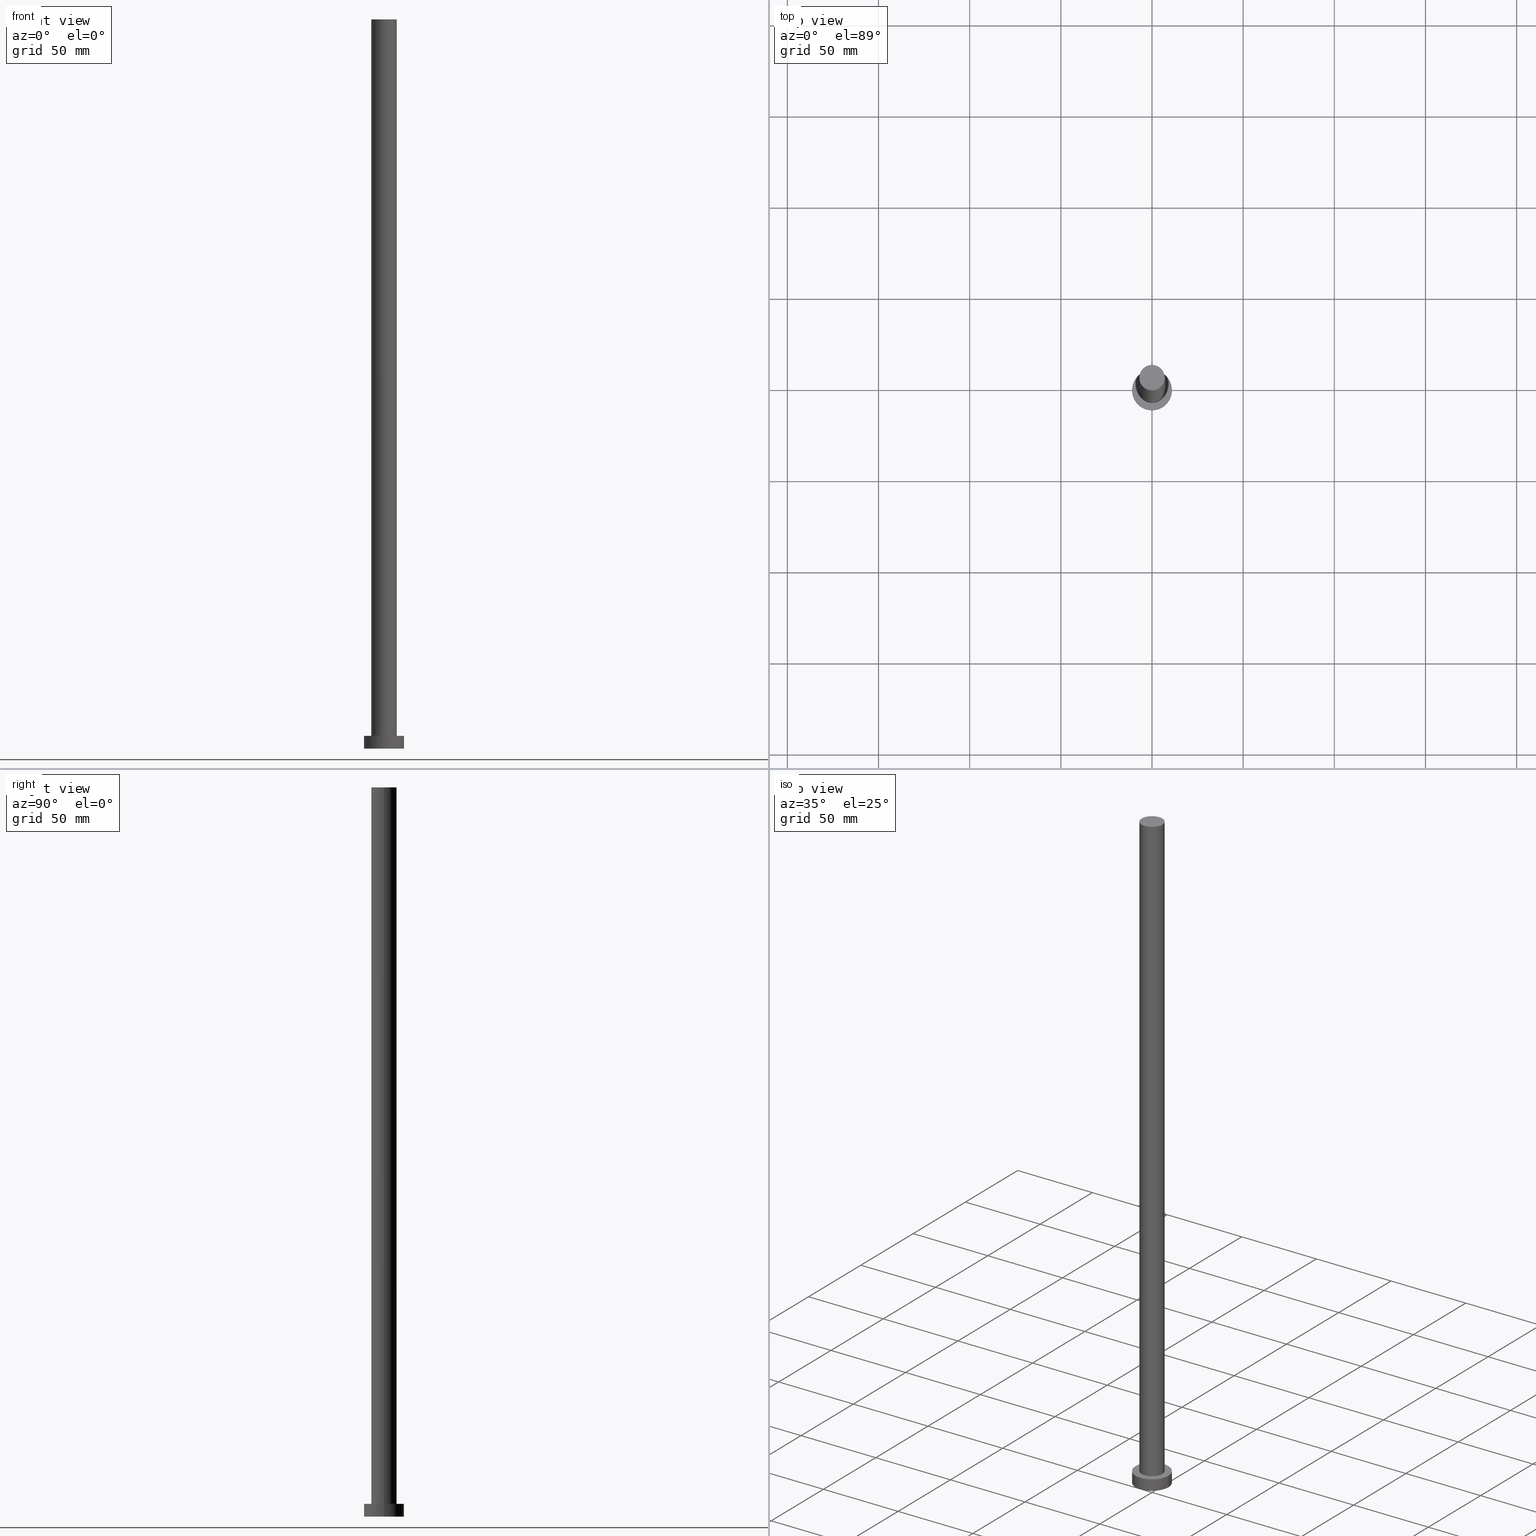
[diagram: canonical four-view strip — front | top / right | iso, engineering-drawing reading convention]
A machine part, canonical four-view strip (front | top / right | iso — engineering-drawing reading convention). The complete STEP part file that produces these views, byte-faithful:
ISO-10303-21;
HEADER;
FILE_DESCRIPTION (( 'STEP AP203' ),
    '1' );
FILE_NAME ('90d7.STEP',
    '2023-02-13T08:54:36',
    ( '' ),
    ( '' ),
    'SwSTEP 2.0',
    'SolidWorks 2019',
    '' );
FILE_SCHEMA (( 'CONFIG_CONTROL_DESIGN' ));
ENDSEC;

DATA;
#1 = CARTESIAN_POINT ( 'NONE',  ( 0.000000000000000000, 0.000000000000000000, 7.000000000000000000 ) ) ;
#2 = LINE ( 'NONE', #38, #207 ) ;
#3 = EDGE_CURVE ( 'NONE', #21, #40, #2, .T. ) ;
#4 = ORIENTED_EDGE ( 'NONE', *, *, #10, .F. ) ;
#5 = CARTESIAN_POINT ( 'NONE',  ( 7.000000000000000888, 8.572527594031474176E-16, 400.0000000000000000 ) ) ;
#6 = DIRECTION ( 'NONE',  ( -0.000000000000000000, -0.000000000000000000, -1.000000000000000000 ) ) ;
#7 = FACE_OUTER_BOUND ( 'NONE', #36, .T. ) ;
#8 = CARTESIAN_POINT ( 'NONE',  ( 0.000000000000000000, 0.000000000000000000, 7.000000000000000000 ) ) ;
#9 = CIRCLE ( 'NONE', #147, 11.00000000000000000 ) ;
#10 = EDGE_CURVE ( 'NONE', #17, #155, #249, .T. ) ;
#11 = PERSON_AND_ORGANIZATION ( #49, #24 ) ;
#12 = ORIENTED_EDGE ( 'NONE', *, *, #3, .F. ) ;
#13 = CIRCLE ( 'NONE', #92, 7.000000000000000888 ) ;
#14 = CC_DESIGN_APPROVAL ( #187, ( #18 ) ) ;
#15 = AXIS2_PLACEMENT_3D ( 'NONE', #237, #59, #218 ) ;
#16 = PERSON_AND_ORGANIZATION_ROLE ( 'creator' ) ;
#17 = VERTEX_POINT ( 'NONE', #182 ) ;
#18 = PRODUCT_DEFINITION ( 'NEZN�M�', '', #58, #252 ) ;
#19 = PLANE ( 'NONE',  #15 ) ;
#20 =( LENGTH_UNIT ( ) NAMED_UNIT ( * ) SI_UNIT ( .MILLI., .METRE. ) );
#21 = VERTEX_POINT ( 'NONE', #5 ) ;
#22 = DIRECTION ( 'NONE',  ( 0.000000000000000000, 0.000000000000000000, 1.000000000000000000 ) ) ;
#23 = CARTESIAN_POINT ( 'NONE',  ( 0.000000000000000000, 0.000000000000000000, 0.000000000000000000 ) ) ;
#24 = ORGANIZATION ( 'NEUR�EN�', 'NEUR�EN�', '' ) ;
#25 = DIRECTION ( 'NONE',  ( 0.000000000000000000, 0.000000000000000000, 1.000000000000000000 ) ) ;
#26 = APPROVAL_DATE_TIME ( #128, #187 ) ;
#27 = CARTESIAN_POINT ( 'NONE',  ( -11.00000000000000000, 0.000000000000000000, 7.000000000000000000 ) ) ;
#28 = DIRECTION ( 'NONE',  ( -1.000000000000000000, 0.000000000000000000, 0.000000000000000000 ) ) ;
#29 = DIRECTION ( 'NONE',  ( -0.000000000000000000, -0.000000000000000000, -1.000000000000000000 ) ) ;
#30 = ADVANCED_FACE ( 'NONE', ( #83 ), #241, .T. ) ;
#31 = CARTESIAN_POINT ( 'NONE',  ( 0.000000000000000000, 0.000000000000000000, 400.0000000000000000 ) ) ;
#32 = DIRECTION ( 'NONE',  ( 1.000000000000000000, 0.000000000000000000, 0.000000000000000000 ) ) ;
#33 = APPROVAL ( #233, 'NEUR�EN�' ) ;
#34 = PERSON_AND_ORGANIZATION ( #49, #24 ) ;
#35 = ORIENTED_EDGE ( 'NONE', *, *, #129, .F. ) ;
#36 = EDGE_LOOP ( 'NONE', ( #12, #39, #179, #198 ) ) ;
#37 = CC_DESIGN_DATE_AND_TIME_ASSIGNMENT ( #191, #74, ( #206 ) ) ;
#38 = CARTESIAN_POINT ( 'NONE',  ( 7.000000000000000888, 8.572527594031474176E-16, 400.0000000000000000 ) ) ;
#39 = ORIENTED_EDGE ( 'NONE', *, *, #171, .F. ) ;
#40 = VERTEX_POINT ( 'NONE', #62 ) ;
#41 = AXIS2_PLACEMENT_3D ( 'NONE', #226, #188, #212 ) ;
#42 = DIRECTION ( 'NONE',  ( 0.000000000000000000, 0.000000000000000000, 1.000000000000000000 ) ) ;
#43 = DIRECTION ( 'NONE',  ( -0.000000000000000000, -0.000000000000000000, -1.000000000000000000 ) ) ;
#44 = CARTESIAN_POINT ( 'NONE',  ( -7.000000000000000888, 0.000000000000000000, 400.0000000000000000 ) ) ;
#45 = LINE ( 'NONE', #205, #154 ) ;
#46 = EDGE_CURVE ( 'NONE', #17, #127, #144, .T. ) ;
#47 = APPROVAL_PERSON_ORGANIZATION ( #156, #33, #56 ) ;
#48 = DIRECTION ( 'NONE',  ( 0.000000000000000000, 0.000000000000000000, 1.000000000000000000 ) ) ;
#49 = PERSON ( 'NEUR�EN�', 'NEUR�EN�', 'NEUR�EN�', ('NEUR�EN�'), ('NEUR�EN�'), ('NEUR�EN�') ) ;
#50 = PLANE ( 'NONE',  #234 ) ;
#51 = APPROVAL_PERSON_ORGANIZATION ( #254, #209, #213 ) ;
#52 = PERSON_AND_ORGANIZATION ( #49, #24 ) ;
#53 = AXIS2_PLACEMENT_3D ( 'NONE', #247, #208, #28 ) ;
#54 = APPLICATION_CONTEXT ( 'configuration controlled 3d designs of mechanical parts and assemblies' ) ;
#55 = DATE_AND_TIME ( #158, #221 ) ;
#56 = APPROVAL_ROLE ( '' ) ;
#57 = ORIENTED_EDGE ( 'NONE', *, *, #224, .T. ) ;
#58 = PRODUCT_DEFINITION_FORMATION_WITH_SPECIFIED_SOURCE ( 'LIBOVOLN�', '', #193, .NOT_KNOWN. ) ;
#59 = DIRECTION ( 'NONE',  ( 0.000000000000000000, 0.000000000000000000, 1.000000000000000000 ) ) ;
#60 = ORIENTED_EDGE ( 'NONE', *, *, #204, .F. ) ;
#61 = ORIENTED_EDGE ( 'NONE', *, *, #10, .T. ) ;
#62 = CARTESIAN_POINT ( 'NONE',  ( 7.000000000000000888, 8.572527594031474176E-16, 7.000000000000000000 ) ) ;
#63 = DIRECTION ( 'NONE',  ( 1.000000000000000000, 0.000000000000000000, 0.000000000000000000 ) ) ;
#64 = ADVANCED_FACE ( 'NONE', ( #181 ), #19, .F. ) ;
#65 = DIRECTION ( 'NONE',  ( 1.000000000000000000, 0.000000000000000000, 0.000000000000000000 ) ) ;
#66 = UNCERTAINTY_MEASURE_WITH_UNIT (LENGTH_MEASURE( 1.000000000000000082E-05 ), #20, 'distance_accuracy_value', 'NONE');
#67 = CARTESIAN_POINT ( 'NONE',  ( 0.000000000000000000, 0.000000000000000000, 400.0000000000000000 ) ) ;
#68 = ADVANCED_FACE ( 'NONE', ( #7 ), #91, .T. ) ;
#69 = DIRECTION ( 'NONE',  ( 0.000000000000000000, 0.000000000000000000, 1.000000000000000000 ) ) ;
#70 = DIRECTION ( 'NONE',  ( 0.000000000000000000, 0.000000000000000000, 1.000000000000000000 ) ) ;
#71 = CIRCLE ( 'NONE', #157, 7.000000000000000888 ) ;
#72 = EDGE_LOOP ( 'NONE', ( #121, #79 ) ) ;
#73 = COORDINATED_UNIVERSAL_TIME_OFFSET ( 1, 0, .AHEAD. ) ;
#74 = DATE_TIME_ROLE ( 'classification_date' ) ;
#75 = APPROVAL_PERSON_ORGANIZATION ( #11, #187, #244 ) ;
#76 = COORDINATED_UNIVERSAL_TIME_OFFSET ( 1, 0, .AHEAD. ) ;
#77 = ADVANCED_FACE ( 'NONE', ( #111 ), #189, .T. ) ;
#78 = CALENDAR_DATE ( 2023, 13, 2 ) ;
#79 = ORIENTED_EDGE ( 'NONE', *, *, #204, .T. ) ;
#80 = CLOSED_SHELL ( 'NONE', ( #126, #30, #195, #153, #64, #68, #77 ) ) ;
#81 = ORIENTED_EDGE ( 'NONE', *, *, #129, .T. ) ;
#82 = EDGE_LOOP ( 'NONE', ( #142, #141 ) ) ;
#83 = FACE_OUTER_BOUND ( 'NONE', #125, .T. ) ;
#84 = CC_DESIGN_SECURITY_CLASSIFICATION ( #206, ( #58 ) ) ;
#85 = CARTESIAN_POINT ( 'NONE',  ( 0.000000000000000000, 0.000000000000000000, 7.000000000000000000 ) ) ;
#86 = CARTESIAN_POINT ( 'NONE',  ( -7.000000000000000888, 0.000000000000000000, 400.0000000000000000 ) ) ;
#87 = CC_DESIGN_PERSON_AND_ORGANIZATION_ASSIGNMENT ( #52, #116, ( #206 ) ) ;
#88 = MECHANICAL_CONTEXT ( 'NONE', #54, 'mechanical' ) ;
#89 = DIRECTION ( 'NONE',  ( -1.000000000000000000, 0.000000000000000000, 0.000000000000000000 ) ) ;
#90 = CALENDAR_DATE ( 2023, 13, 2 ) ;
#91 = CYLINDRICAL_SURFACE ( 'NONE', #196, 7.000000000000000888 ) ;
#92 = AXIS2_PLACEMENT_3D ( 'NONE', #8, #245, #228 ) ;
#93 = DIRECTION ( 'NONE',  ( 1.000000000000000000, 0.000000000000000000, -0.000000000000000000 ) ) ;
#94 = PERSON_AND_ORGANIZATION ( #49, #24 ) ;
#95 = COORDINATED_UNIVERSAL_TIME_OFFSET ( 1, 0, .AHEAD. ) ;
#96 = CC_DESIGN_APPROVAL ( #209, ( #206 ) ) ;
#97 = PERSON_AND_ORGANIZATION ( #49, #24 ) ;
#98 = CALENDAR_DATE ( 2023, 13, 2 ) ;
#99 = ORIENTED_EDGE ( 'NONE', *, *, #180, .F. ) ;
#100 = DIRECTION ( 'NONE',  ( -1.000000000000000000, 0.000000000000000000, 0.000000000000000000 ) ) ;
#101 = CC_DESIGN_PERSON_AND_ORGANIZATION_ASSIGNMENT ( #109, #231, ( #18 ) ) ;
#102 = CIRCLE ( 'NONE', #240, 11.00000000000000000 ) ;
#103 = AXIS2_PLACEMENT_3D ( 'NONE', #1, #22, #105 ) ;
#104 = VERTEX_POINT ( 'NONE', #86 ) ;
#105 = DIRECTION ( 'NONE',  ( 1.000000000000000000, 0.000000000000000000, 0.000000000000000000 ) ) ;
#106 = DIRECTION ( 'NONE',  ( -0.000000000000000000, -0.000000000000000000, -1.000000000000000000 ) ) ;
#107 = DIRECTION ( 'NONE',  ( 0.000000000000000000, 0.000000000000000000, 1.000000000000000000 ) ) ;
#108 = CIRCLE ( 'NONE', #143, 7.000000000000000888 ) ;
#109 = PERSON_AND_ORGANIZATION ( #49, #24 ) ;
#110 = DIRECTION ( 'NONE',  ( 1.000000000000000000, 0.000000000000000000, -0.000000000000000000 ) ) ;
#111 = FACE_OUTER_BOUND ( 'NONE', #72, .T. ) ;
#112 = LOCAL_TIME ( 9, 54, 36.00000000000000000, #115 ) ;
#113 = EDGE_CURVE ( 'NONE', #197, #40, #108, .T. ) ;
#114 = COORDINATED_UNIVERSAL_TIME_OFFSET ( 1, 0, .AHEAD. ) ;
#115 = COORDINATED_UNIVERSAL_TIME_OFFSET ( 1, 0, .AHEAD. ) ;
#116 = PERSON_AND_ORGANIZATION_ROLE ( 'classification_officer' ) ;
#117 = PRODUCT_DEFINITION_SHAPE ( 'NONE', 'NONE',  #18 ) ;
#118 = DATE_AND_TIME ( #78, #201 ) ;
#119 = CC_DESIGN_PERSON_AND_ORGANIZATION_ASSIGNMENT ( #34, #176, ( #58 ) ) ;
#120 = AXIS2_PLACEMENT_3D ( 'NONE', #229, #107, #110 ) ;
#121 = ORIENTED_EDGE ( 'NONE', *, *, #171, .T. ) ;
#122 = DIRECTION ( 'NONE',  ( -0.000000000000000000, -0.000000000000000000, -1.000000000000000000 ) ) ;
#123 = CC_DESIGN_PERSON_AND_ORGANIZATION_ASSIGNMENT ( #94, #211, ( #193 ) ) ;
#124 = CIRCLE ( 'NONE', #41, 7.000000000000000888 ) ;
#125 = EDGE_LOOP ( 'NONE', ( #4, #184, #223, #162 ) ) ;
#126 = ADVANCED_FACE ( 'NONE', ( #167 ), #152, .T. ) ;
#127 = VERTEX_POINT ( 'NONE', #149 ) ;
#128 = DATE_AND_TIME ( #90, #174 ) ;
#129 = EDGE_CURVE ( 'NONE', #40, #197, #13, .T. ) ;
#130 = DIRECTION ( 'NONE',  ( -0.000000000000000000, -0.000000000000000000, -1.000000000000000000 ) ) ;
#131 = ADVANCED_BREP_SHAPE_REPRESENTATION ( '90d7', ( #132, #160 ), #150 ) ;
#132 = MANIFOLD_SOLID_BREP ( 'P�idat vysunut�m3', #80 ) ;
#133 = CARTESIAN_POINT ( 'NONE',  ( 0.000000000000000000, 0.000000000000000000, 7.000000000000000000 ) ) ;
#134 = CIRCLE ( 'NONE', #165, 11.00000000000000000 ) ;
#135 = DIRECTION ( 'NONE',  ( 0.000000000000000000, 0.000000000000000000, 1.000000000000000000 ) ) ;
#136 = APPLICATION_PROTOCOL_DEFINITION ( 'international standard', 'config_control_design', 1994, #139 ) ;
#137 = CC_DESIGN_DATE_AND_TIME_ASSIGNMENT ( #118, #173, ( #18 ) ) ;
#138 = CC_DESIGN_APPROVAL ( #33, ( #58 ) ) ;
#139 = APPLICATION_CONTEXT ( 'configuration controlled 3d designs of mechanical parts and assemblies' ) ;
#140 = APPROVAL_DATE_TIME ( #55, #209 ) ;
#141 = ORIENTED_EDGE ( 'NONE', *, *, #199, .F. ) ;
#142 = ORIENTED_EDGE ( 'NONE', *, *, #224, .F. ) ;
#143 = AXIS2_PLACEMENT_3D ( 'NONE', #210, #25, #65 ) ;
#144 = LINE ( 'NONE', #203, #230 ) ;
#145 = CC_DESIGN_PERSON_AND_ORGANIZATION_ASSIGNMENT ( #97, #16, ( #58 ) ) ;
#146 = ORIENTED_EDGE ( 'NONE', *, *, #3, .T. ) ;
#147 = AXIS2_PLACEMENT_3D ( 'NONE', #168, #48, #227 ) ;
#148 = EDGE_LOOP ( 'NONE', ( #202, #61 ) ) ;
#149 = CARTESIAN_POINT ( 'NONE',  ( 11.00000000000000000, 1.347111479062088405E-15, 0.000000000000000000 ) ) ;
#150 =( GEOMETRIC_REPRESENTATION_CONTEXT ( 3 ) GLOBAL_UNCERTAINTY_ASSIGNED_CONTEXT ( ( #66 ) ) GLOBAL_UNIT_ASSIGNED_CONTEXT ( ( #20, #163, #219 ) ) REPRESENTATION_CONTEXT ( 'NONE', 'WORKASPACE' ) );
#151 = APPLICATION_PROTOCOL_DEFINITION ( 'international standard', 'config_control_design', 1994, #54 ) ;
#152 = CYLINDRICAL_SURFACE ( 'NONE', #53, 7.000000000000000888 ) ;
#153 = ADVANCED_FACE ( 'NONE', ( #169, #251 ), #50, .T. ) ;
#154 = VECTOR ( 'NONE', #6, 1000.000000000000000 ) ;
#155 = VERTEX_POINT ( 'NONE', #27 ) ;
#156 = PERSON_AND_ORGANIZATION ( #49, #24 ) ;
#157 = AXIS2_PLACEMENT_3D ( 'NONE', #31, #185, #225 ) ;
#158 = CALENDAR_DATE ( 2023, 13, 2 ) ;
#159 = SECURITY_CLASSIFICATION_LEVEL ( 'unclassified' ) ;
#160 = AXIS2_PLACEMENT_3D ( 'NONE', #243, #69, #32 ) ;
#161 = ORIENTED_EDGE ( 'NONE', *, *, #46, .F. ) ;
#162 = ORIENTED_EDGE ( 'NONE', *, *, #215, .F. ) ;
#163 =( NAMED_UNIT ( * ) PLANE_ANGLE_UNIT ( ) SI_UNIT ( $, .RADIAN. ) );
#164 = CARTESIAN_POINT ( 'NONE',  ( 0.000000000000000000, 0.000000000000000000, 7.000000000000000000 ) ) ;
#165 = AXIS2_PLACEMENT_3D ( 'NONE', #253, #135, #63 ) ;
#166 = FACE_OUTER_BOUND ( 'NONE', #220, .T. ) ;
#167 = FACE_OUTER_BOUND ( 'NONE', #236, .T. ) ;
#168 = CARTESIAN_POINT ( 'NONE',  ( 0.000000000000000000, 0.000000000000000000, 7.000000000000000000 ) ) ;
#169 = FACE_BOUND ( 'NONE', #239, .T. ) ;
#170 = CARTESIAN_POINT ( 'NONE',  ( -7.000000000000000888, 0.000000000000000000, 7.000000000000000000 ) ) ;
#171 = EDGE_CURVE ( 'NONE', #104, #21, #124, .T. ) ;
#172 = APPROVAL_STATUS ( 'not_yet_approved' ) ;
#173 = DATE_TIME_ROLE ( 'creation_date' ) ;
#174 = LOCAL_TIME ( 9, 54, 36.00000000000000000, #95 ) ;
#175 = CALENDAR_DATE ( 2023, 13, 2 ) ;
#176 = PERSON_AND_ORGANIZATION_ROLE ( 'design_supplier' ) ;
#177 = LINE ( 'NONE', #44, #190 ) ;
#178 = CARTESIAN_POINT ( 'NONE',  ( -11.00000000000000000, 0.000000000000000000, 0.000000000000000000 ) ) ;
#179 = ORIENTED_EDGE ( 'NONE', *, *, #246, .T. ) ;
#180 = EDGE_CURVE ( 'NONE', #155, #17, #9, .T. ) ;
#181 = FACE_OUTER_BOUND ( 'NONE', #82, .T. ) ;
#182 = CARTESIAN_POINT ( 'NONE',  ( 11.00000000000000000, 1.347111479062088405E-15, 7.000000000000000000 ) ) ;
#183 = ORIENTED_EDGE ( 'NONE', *, *, #246, .F. ) ;
#184 = ORIENTED_EDGE ( 'NONE', *, *, #46, .T. ) ;
#185 = DIRECTION ( 'NONE',  ( 0.000000000000000000, 0.000000000000000000, 1.000000000000000000 ) ) ;
#186 = CYLINDRICAL_SURFACE ( 'NONE', #248, 11.00000000000000000 ) ;
#187 = APPROVAL ( #172, 'NEUR�EN�' ) ;
#188 = DIRECTION ( 'NONE',  ( 0.000000000000000000, 0.000000000000000000, 1.000000000000000000 ) ) ;
#189 = PLANE ( 'NONE',  #120 ) ;
#190 = VECTOR ( 'NONE', #255, 1000.000000000000000 ) ;
#191 = DATE_AND_TIME ( #175, #192 ) ;
#192 = LOCAL_TIME ( 9, 54, 36.00000000000000000, #73 ) ;
#193 = PRODUCT ( '90d7', '90d7', '', ( #88 ) ) ;
#194 = DATE_AND_TIME ( #98, #112 ) ;
#195 = ADVANCED_FACE ( 'NONE', ( #166 ), #186, .T. ) ;
#196 = AXIS2_PLACEMENT_3D ( 'NONE', #67, #130, #89 ) ;
#197 = VERTEX_POINT ( 'NONE', #170 ) ;
#198 = ORIENTED_EDGE ( 'NONE', *, *, #113, .T. ) ;
#199 = EDGE_CURVE ( 'NONE', #127, #217, #134, .T. ) ;
#200 = ORIENTED_EDGE ( 'NONE', *, *, #113, .F. ) ;
#201 = LOCAL_TIME ( 9, 54, 36.00000000000000000, #114 ) ;
#202 = ORIENTED_EDGE ( 'NONE', *, *, #180, .T. ) ;
#203 = CARTESIAN_POINT ( 'NONE',  ( 11.00000000000000000, 1.347111479062088405E-15, 7.000000000000000000 ) ) ;
#204 = EDGE_CURVE ( 'NONE', #21, #104, #71, .T. ) ;
#205 = CARTESIAN_POINT ( 'NONE',  ( -11.00000000000000000, 0.000000000000000000, 7.000000000000000000 ) ) ;
#206 = SECURITY_CLASSIFICATION ( '', '', #159 ) ;
#207 = VECTOR ( 'NONE', #122, 1000.000000000000000 ) ;
#208 = DIRECTION ( 'NONE',  ( -0.000000000000000000, -0.000000000000000000, -1.000000000000000000 ) ) ;
#209 = APPROVAL ( #232, 'NEUR�EN�' ) ;
#210 = CARTESIAN_POINT ( 'NONE',  ( 0.000000000000000000, 0.000000000000000000, 7.000000000000000000 ) ) ;
#211 = PERSON_AND_ORGANIZATION_ROLE ( 'design_owner' ) ;
#212 = DIRECTION ( 'NONE',  ( 1.000000000000000000, 0.000000000000000000, 0.000000000000000000 ) ) ;
#213 = APPROVAL_ROLE ( '' ) ;
#214 = DIRECTION ( 'NONE',  ( 1.000000000000000000, 0.000000000000000000, 0.000000000000000000 ) ) ;
#215 = EDGE_CURVE ( 'NONE', #155, #217, #45, .T. ) ;
#216 = SHAPE_DEFINITION_REPRESENTATION ( #117, #131 ) ;
#217 = VERTEX_POINT ( 'NONE', #178 ) ;
#218 = DIRECTION ( 'NONE',  ( 1.000000000000000000, 0.000000000000000000, -0.000000000000000000 ) ) ;
#219 =( NAMED_UNIT ( * ) SI_UNIT ( $, .STERADIAN. ) SOLID_ANGLE_UNIT ( ) );
#220 = EDGE_LOOP ( 'NONE', ( #161, #99, #238, #57 ) ) ;
#221 = LOCAL_TIME ( 9, 54, 36.00000000000000000, #76 ) ;
#222 = AXIS2_PLACEMENT_3D ( 'NONE', #164, #43, #100 ) ;
#223 = ORIENTED_EDGE ( 'NONE', *, *, #199, .T. ) ;
#224 = EDGE_CURVE ( 'NONE', #217, #127, #102, .T. ) ;
#225 = DIRECTION ( 'NONE',  ( 1.000000000000000000, 0.000000000000000000, 0.000000000000000000 ) ) ;
#226 = CARTESIAN_POINT ( 'NONE',  ( 0.000000000000000000, 0.000000000000000000, 400.0000000000000000 ) ) ;
#227 = DIRECTION ( 'NONE',  ( 1.000000000000000000, 0.000000000000000000, 0.000000000000000000 ) ) ;
#228 = DIRECTION ( 'NONE',  ( 1.000000000000000000, 0.000000000000000000, 0.000000000000000000 ) ) ;
#229 = CARTESIAN_POINT ( 'NONE',  ( 0.000000000000000000, 0.000000000000000000, 400.0000000000000000 ) ) ;
#230 = VECTOR ( 'NONE', #106, 1000.000000000000000 ) ;
#231 = PERSON_AND_ORGANIZATION_ROLE ( 'creator' ) ;
#232 = APPROVAL_STATUS ( 'not_yet_approved' ) ;
#233 = APPROVAL_STATUS ( 'not_yet_approved' ) ;
#234 = AXIS2_PLACEMENT_3D ( 'NONE', #85, #70, #93 ) ;
#235 = APPROVAL_DATE_TIME ( #194, #33 ) ;
#236 = EDGE_LOOP ( 'NONE', ( #60, #146, #81, #183 ) ) ;
#237 = CARTESIAN_POINT ( 'NONE',  ( 0.000000000000000000, 0.000000000000000000, 0.000000000000000000 ) ) ;
#238 = ORIENTED_EDGE ( 'NONE', *, *, #215, .T. ) ;
#239 = EDGE_LOOP ( 'NONE', ( #200, #35 ) ) ;
#240 = AXIS2_PLACEMENT_3D ( 'NONE', #23, #42, #214 ) ;
#241 = CYLINDRICAL_SURFACE ( 'NONE', #222, 11.00000000000000000 ) ;
#242 = DIRECTION ( 'NONE',  ( -1.000000000000000000, 0.000000000000000000, 0.000000000000000000 ) ) ;
#243 = CARTESIAN_POINT ( 'NONE',  ( 0.000000000000000000, 0.000000000000000000, 0.000000000000000000 ) ) ;
#244 = APPROVAL_ROLE ( '' ) ;
#245 = DIRECTION ( 'NONE',  ( 0.000000000000000000, 0.000000000000000000, 1.000000000000000000 ) ) ;
#246 = EDGE_CURVE ( 'NONE', #104, #197, #177, .T. ) ;
#247 = CARTESIAN_POINT ( 'NONE',  ( 0.000000000000000000, 0.000000000000000000, 400.0000000000000000 ) ) ;
#248 = AXIS2_PLACEMENT_3D ( 'NONE', #133, #29, #242 ) ;
#249 = CIRCLE ( 'NONE', #103, 11.00000000000000000 ) ;
#250 = PRODUCT_RELATED_PRODUCT_CATEGORY ( 'detail', '', ( #193 ) ) ;
#251 = FACE_OUTER_BOUND ( 'NONE', #148, .T. ) ;
#252 = DESIGN_CONTEXT ( 'detailed design', #139, 'design' ) ;
#253 = CARTESIAN_POINT ( 'NONE',  ( 0.000000000000000000, 0.000000000000000000, 0.000000000000000000 ) ) ;
#254 = PERSON_AND_ORGANIZATION ( #49, #24 ) ;
#255 = DIRECTION ( 'NONE',  ( -0.000000000000000000, -0.000000000000000000, -1.000000000000000000 ) ) ;
ENDSEC;
END-ISO-10303-21;
